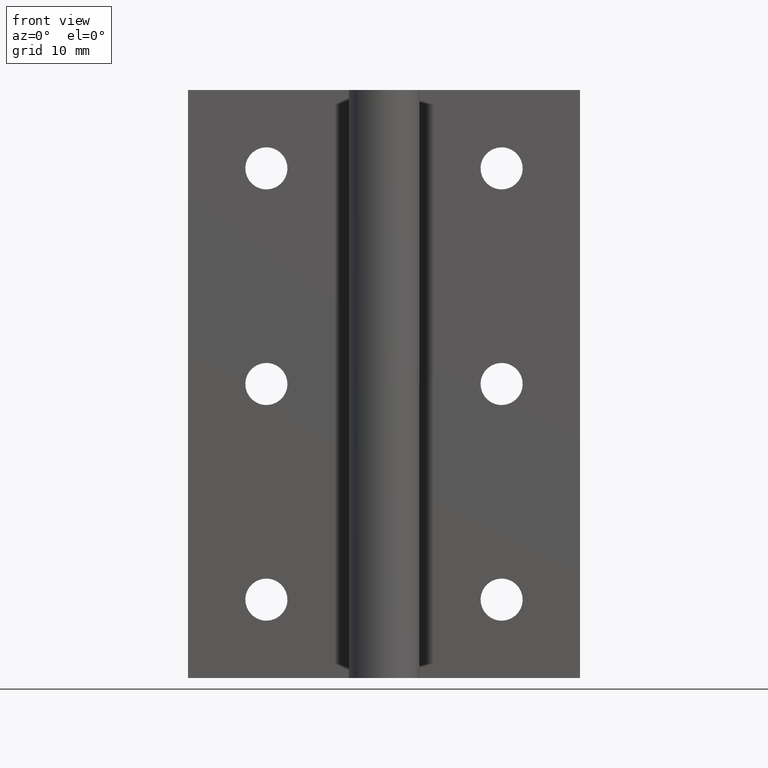
[diagram: clean part render]
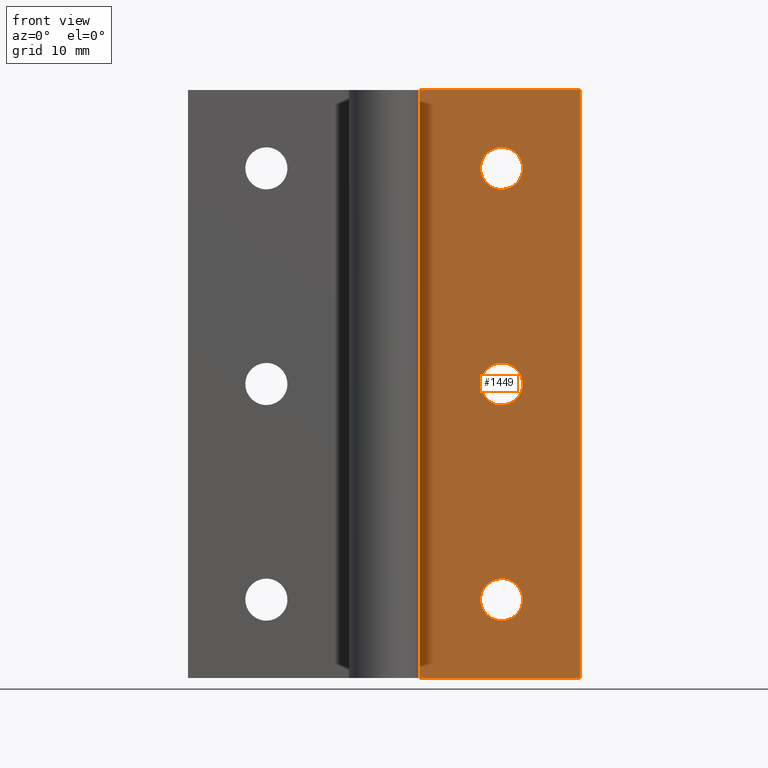
[diagram: same view with one face highlighted and labeled with its STEP entity id]
A machine part, front view. The second image highlights one B-rep face of the part: STEP entity #1449.
In plain terms, the highlighted face is a freeform B-spline surface patch.
Its self-contained STEP definition (entity closure, byte-faithful):
#455=CARTESIAN_POINT('',(12.0,8.999998000000000,54.150008000000099));
#456=VERTEX_POINT('',#455);
#457=CARTESIAN_POINT('',(9.856627732478707,8.999998000000000,52.168695055877620));
#458=VERTEX_POINT('',#457);
#459=CARTESIAN_POINT('',(12.0,8.999998000000000,54.150008000000099));
#460=CARTESIAN_POINT('',(10.012560443051399,8.999998000000000,54.150008000000099));
#461=CARTESIAN_POINT('',(9.856627732478707,8.999998000000000,52.168695055877627));
#469=(BOUNDED_CURVE()B_SPLINE_CURVE(2,(#459,#460,#461),.UNSPECIFIED.,.F.,.U.)B_SPLINE_CURVE_WITH_KNOTS((3,3),(0.0,0.236331300622746),.UNSPECIFIED.)CURVE()GEOMETRIC_REPRESENTATION_ITEM()RATIONAL_B_SPLINE_CURVE((1.0,0.723120658616937,0.969723356150902))REPRESENTATION_ITEM(''));
#470=EDGE_CURVE('',#456,#458,#469,.T.);
#511=CARTESIAN_POINT('',(14.143372267521290,8.999998000000002,51.831320944122581));
#512=VERTEX_POINT('',#511);
#518=CARTESIAN_POINT('',(14.143372267521297,8.999998000000002,51.831320944122581));
#519=CARTESIAN_POINT('',(14.150000000000004,8.999998000000000,51.915534269870669));
#520=CARTESIAN_POINT('',(14.150000000000000,8.999998000000000,52.000008000000101));
#521=CARTESIAN_POINT('',(14.150000000000006,8.999998000000002,54.150008000000099));
#522=CARTESIAN_POINT('',(12.0,8.999998000000000,54.150008000000099));
#530=(BOUNDED_CURVE()B_SPLINE_CURVE(2,(#518,#519,#520,#521,#522),.UNSPECIFIED.,.F.,.U.)B_SPLINE_CURVE_WITH_KNOTS((3,2,3),(0.736331300622746,0.750000000000000,1.0),.UNSPECIFIED.)CURVE()GEOMETRIC_REPRESENTATION_ITEM()RATIONAL_B_SPLINE_CURVE((0.969723356150902,0.983986122569610,1.0,0.707106781186547,1.0))REPRESENTATION_ITEM(''));
#531=EDGE_CURVE('',#512,#456,#530,.T.);
#554=CARTESIAN_POINT('',(12.0,8.999998000000000,49.850008000000102));
#555=VERTEX_POINT('',#554);
#556=CARTESIAN_POINT('',(9.856627732478707,8.999998000000000,52.168695055877627));
#557=CARTESIAN_POINT('',(9.850000000000001,8.999998000000002,52.084481730129525));
#558=CARTESIAN_POINT('',(9.850000000000001,8.999998000000000,52.000008000000101));
#559=CARTESIAN_POINT('',(9.850000000000001,8.999998000000002,49.850008000000102));
#560=CARTESIAN_POINT('',(12.0,8.999998000000000,49.850008000000102));
#568=(BOUNDED_CURVE()B_SPLINE_CURVE(2,(#556,#557,#558,#559,#560),.UNSPECIFIED.,.F.,.U.)B_SPLINE_CURVE_WITH_KNOTS((3,2,3),(0.236331300622746,0.250000000000000,0.500000000000000),.UNSPECIFIED.)CURVE()GEOMETRIC_REPRESENTATION_ITEM()RATIONAL_B_SPLINE_CURVE((0.969723356150902,0.983986122569610,1.0,0.707106781186547,1.0))REPRESENTATION_ITEM(''));
#569=EDGE_CURVE('',#458,#555,#568,.T.);
#571=CARTESIAN_POINT('',(12.0,8.999998000000000,49.850008000000102));
#572=CARTESIAN_POINT('',(13.987439556948599,8.999998000000000,49.850008000000088));
#573=CARTESIAN_POINT('',(14.143372267521297,8.999998000000002,51.831320944122581));
#581=(BOUNDED_CURVE()B_SPLINE_CURVE(2,(#571,#572,#573),.UNSPECIFIED.,.F.,.U.)B_SPLINE_CURVE_WITH_KNOTS((3,3),(0.500000000000000,0.736331300622745),.UNSPECIFIED.)CURVE()GEOMETRIC_REPRESENTATION_ITEM()RATIONAL_B_SPLINE_CURVE((1.0,0.723120658616938,0.969723356150901))REPRESENTATION_ITEM(''));
#582=EDGE_CURVE('',#555,#512,#581,.T.);
#637=CARTESIAN_POINT('',(12.0,8.999998000000000,32.150008000000113));
#638=VERTEX_POINT('',#637);
#639=CARTESIAN_POINT('',(9.856627732478707,8.999998000000000,30.168695055877610));
#640=VERTEX_POINT('',#639);
#641=CARTESIAN_POINT('',(12.0,8.999998000000000,32.150008000000113));
#642=CARTESIAN_POINT('',(10.012560443051395,8.999998000000000,32.150008000000106));
#643=CARTESIAN_POINT('',(9.856627732478707,8.999998000000000,30.168695055877617));
#651=(BOUNDED_CURVE()B_SPLINE_CURVE(2,(#641,#642,#643),.UNSPECIFIED.,.F.,.U.)B_SPLINE_CURVE_WITH_KNOTS((3,3),(0.0,0.236331300622746),.UNSPECIFIED.)CURVE()GEOMETRIC_REPRESENTATION_ITEM()RATIONAL_B_SPLINE_CURVE((1.0,0.723120658616937,0.969723356150903))REPRESENTATION_ITEM(''));
#652=EDGE_CURVE('',#638,#640,#651,.T.);
#693=CARTESIAN_POINT('',(14.143372267521290,8.999998000000000,29.831320944122591));
#694=VERTEX_POINT('',#693);
#700=CARTESIAN_POINT('',(14.143372267521292,8.999998000000000,29.831320944122588));
#701=CARTESIAN_POINT('',(14.149999999999997,8.999998000000000,29.915534269870676));
#702=CARTESIAN_POINT('',(14.150000000000000,8.999998000000000,30.000008000000101));
#703=CARTESIAN_POINT('',(14.150000000000006,8.999998000000002,32.150008000000113));
#704=CARTESIAN_POINT('',(12.0,8.999998000000000,32.150008000000113));
#712=(BOUNDED_CURVE()B_SPLINE_CURVE(2,(#700,#701,#702,#703,#704),.UNSPECIFIED.,.F.,.U.)B_SPLINE_CURVE_WITH_KNOTS((3,2,3),(0.736331300622746,0.750000000000000,1.0),.UNSPECIFIED.)CURVE()GEOMETRIC_REPRESENTATION_ITEM()RATIONAL_B_SPLINE_CURVE((0.969723356150902,0.983986122569610,1.0,0.707106781186547,1.0))REPRESENTATION_ITEM(''));
#713=EDGE_CURVE('',#694,#638,#712,.T.);
#736=CARTESIAN_POINT('',(12.0,8.999998000000000,27.850008000000098));
#737=VERTEX_POINT('',#736);
#738=CARTESIAN_POINT('',(9.856627732478707,8.999998000000000,30.168695055877613));
#739=CARTESIAN_POINT('',(9.850000000000001,8.999997999999998,30.084481730129532));
#740=CARTESIAN_POINT('',(9.850000000000001,8.999998000000000,30.000008000000101));
#741=CARTESIAN_POINT('',(9.850000000000001,8.999998000000002,27.850008000000106));
#742=CARTESIAN_POINT('',(12.0,8.999998000000000,27.850008000000098));
#750=(BOUNDED_CURVE()B_SPLINE_CURVE(2,(#738,#739,#740,#741,#742),.UNSPECIFIED.,.F.,.U.)B_SPLINE_CURVE_WITH_KNOTS((3,2,3),(0.236331300622746,0.250000000000000,0.500000000000000),.UNSPECIFIED.)CURVE()GEOMETRIC_REPRESENTATION_ITEM()RATIONAL_B_SPLINE_CURVE((0.969723356150903,0.983986122569611,1.0,0.707106781186547,1.0))REPRESENTATION_ITEM(''));
#751=EDGE_CURVE('',#640,#737,#750,.T.);
#753=CARTESIAN_POINT('',(12.0,8.999998000000000,27.850008000000098));
#754=CARTESIAN_POINT('',(13.987439556948599,8.999998000000000,27.850008000000102));
#755=CARTESIAN_POINT('',(14.143372267521297,8.999997999999998,29.831320944122591));
#763=(BOUNDED_CURVE()B_SPLINE_CURVE(2,(#753,#754,#755),.UNSPECIFIED.,.F.,.U.)B_SPLINE_CURVE_WITH_KNOTS((3,3),(0.500000000000000,0.736331300622745),.UNSPECIFIED.)CURVE()GEOMETRIC_REPRESENTATION_ITEM()RATIONAL_B_SPLINE_CURVE((1.0,0.723120658616938,0.969723356150901))REPRESENTATION_ITEM(''));
#764=EDGE_CURVE('',#737,#694,#763,.T.);
#819=CARTESIAN_POINT('',(12.0,8.999998000000000,10.150000000000000));
#820=VERTEX_POINT('',#819);
#821=CARTESIAN_POINT('',(9.856627732478707,8.999998000000000,8.168687055877516));
#822=VERTEX_POINT('',#821);
#823=CARTESIAN_POINT('',(12.0,8.999998000000000,10.150000000000000));
#824=CARTESIAN_POINT('',(10.012560443051397,8.999998000000000,10.149999999999997));
#825=CARTESIAN_POINT('',(9.856627732478707,8.999998000000000,8.168687055877516));
#833=(BOUNDED_CURVE()B_SPLINE_CURVE(2,(#823,#824,#825),.UNSPECIFIED.,.F.,.U.)B_SPLINE_CURVE_WITH_KNOTS((3,3),(0.0,0.236331300622746),.UNSPECIFIED.)CURVE()GEOMETRIC_REPRESENTATION_ITEM()RATIONAL_B_SPLINE_CURVE((1.0,0.723120658616937,0.969723356150902))REPRESENTATION_ITEM(''));
#834=EDGE_CURVE('',#820,#822,#833,.T.);
#875=CARTESIAN_POINT('',(14.143372267521290,8.999998000000000,7.831312944122485));
#876=VERTEX_POINT('',#875);
#882=CARTESIAN_POINT('',(14.143372267521290,8.999998000000000,7.831312944122485));
#883=CARTESIAN_POINT('',(14.149999999999995,8.999998000000000,7.915526269870571));
#884=CARTESIAN_POINT('',(14.150000000000000,8.999998000000000,8.0));
#885=CARTESIAN_POINT('',(14.150000000000006,8.999998000000002,10.149999999999999));
#886=CARTESIAN_POINT('',(12.0,8.999998000000000,10.150000000000000));
#894=(BOUNDED_CURVE()B_SPLINE_CURVE(2,(#882,#883,#884,#885,#886),.UNSPECIFIED.,.F.,.U.)B_SPLINE_CURVE_WITH_KNOTS((3,2,3),(0.736331300622746,0.750000000000000,1.0),.UNSPECIFIED.)CURVE()GEOMETRIC_REPRESENTATION_ITEM()RATIONAL_B_SPLINE_CURVE((0.969723356150902,0.983986122569610,1.0,0.707106781186547,1.0))REPRESENTATION_ITEM(''));
#895=EDGE_CURVE('',#876,#820,#894,.T.);
#918=CARTESIAN_POINT('',(12.0,8.999998000000000,5.850000000000001));
#919=VERTEX_POINT('',#918);
#920=CARTESIAN_POINT('',(9.856627732478707,8.999998000000000,8.168687055877516));
#921=CARTESIAN_POINT('',(9.850000000000001,8.999998000000000,8.084473730129430));
#922=CARTESIAN_POINT('',(9.850000000000001,8.999998000000000,8.0));
#923=CARTESIAN_POINT('',(9.850000000000001,8.999998000000002,5.850000000000001));
#924=CARTESIAN_POINT('',(12.0,8.999998000000000,5.850000000000001));
#932=(BOUNDED_CURVE()B_SPLINE_CURVE(2,(#920,#921,#922,#923,#924),.UNSPECIFIED.,.F.,.U.)B_SPLINE_CURVE_WITH_KNOTS((3,2,3),(0.236331300622746,0.250000000000000,0.500000000000000),.UNSPECIFIED.)CURVE()GEOMETRIC_REPRESENTATION_ITEM()RATIONAL_B_SPLINE_CURVE((0.969723356150902,0.983986122569610,1.0,0.707106781186547,1.0))REPRESENTATION_ITEM(''));
#933=EDGE_CURVE('',#822,#919,#932,.T.);
#935=CARTESIAN_POINT('',(12.0,8.999998000000000,5.850000000000001));
#936=CARTESIAN_POINT('',(13.987439556948599,8.999998000000000,5.850000000000000));
#937=CARTESIAN_POINT('',(14.143372267521297,8.999997999999998,7.831312944122485));
#945=(BOUNDED_CURVE()B_SPLINE_CURVE(2,(#935,#936,#937),.UNSPECIFIED.,.F.,.U.)B_SPLINE_CURVE_WITH_KNOTS((3,3),(0.500000000000000,0.736331300622745),.UNSPECIFIED.)CURVE()GEOMETRIC_REPRESENTATION_ITEM()RATIONAL_B_SPLINE_CURVE((1.0,0.723120658616938,0.969723356150901))REPRESENTATION_ITEM(''));
#946=EDGE_CURVE('',#919,#876,#945,.T.);
#1219=CARTESIAN_POINT('',(3.599999999999895,8.999998999999999,60.000008000000101));
#1220=VERTEX_POINT('',#1219);
#1226=CARTESIAN_POINT('',(20.000008000000101,8.999998999999999,60.000008000000101));
#1227=VERTEX_POINT('',#1226);
#1228=CARTESIAN_POINT('',(3.599999999999895,8.999998999999999,60.000008000000101));
#1229=CARTESIAN_POINT('',(20.000008000000101,8.999998999999999,60.000008000000101));
#1230=QUASI_UNIFORM_CURVE('',1,(#1228,#1229),.UNSPECIFIED.,.F.,.U.);
#1231=EDGE_CURVE('',#1220,#1227,#1230,.T.);
#1259=CARTESIAN_POINT('',(20.000008000000101,8.999998999999999,0.0));
#1260=VERTEX_POINT('',#1259);
#1266=CARTESIAN_POINT('',(3.599999999999895,8.999998999999999,0.0));
#1267=VERTEX_POINT('',#1266);
#1268=CARTESIAN_POINT('',(3.599999999999895,8.999998999999999,0.0));
#1269=CARTESIAN_POINT('',(20.000008000000101,8.999998999999999,0.0));
#1270=QUASI_UNIFORM_CURVE('',1,(#1268,#1269),.UNSPECIFIED.,.F.,.U.);
#1271=EDGE_CURVE('',#1267,#1260,#1270,.T.);
#1289=CARTESIAN_POINT('',(3.599999999999895,8.999998999999999,0.0));
#1290=CARTESIAN_POINT('',(3.599999999999895,8.999998999999999,60.000008000000101));
#1291=QUASI_UNIFORM_CURVE('',1,(#1289,#1290),.UNSPECIFIED.,.F.,.U.);
#1292=EDGE_CURVE('',#1267,#1220,#1291,.T.);
#1406=CARTESIAN_POINT('',(20.000008000000101,8.999998999999999,0.0));
#1407=CARTESIAN_POINT('',(20.000008000000101,8.999998999999999,60.000008000000101));
#1408=QUASI_UNIFORM_CURVE('',1,(#1406,#1407),.UNSPECIFIED.,.F.,.U.);
#1409=EDGE_CURVE('',#1260,#1227,#1408,.T.);
#1420=CARTESIAN_POINT('',(2.780819536827088,8.999998999999999,62.997008283308453));
#1421=CARTESIAN_POINT('',(2.780819536827088,8.999998999999999,-2.997001892633966));
#1422=CARTESIAN_POINT('',(20.819187583407921,8.999998999999999,62.997008283308453));
#1423=CARTESIAN_POINT('',(20.819187583407921,8.999998999999999,-2.997001892633966));
#1424=B_SPLINE_SURFACE_WITH_KNOTS('',1,1,((#1420,#1422),(#1421,#1423)),.UNSPECIFIED.,.F.,.F.,.U.,(2,2),(2,2),(0.0,65.994010175942421),(0.0,18.038368046580828),.UNSPECIFIED.);
#1425=ORIENTED_EDGE('',*,*,#1231,.F.);
#1426=ORIENTED_EDGE('',*,*,#1292,.F.);
#1427=ORIENTED_EDGE('',*,*,#1271,.T.);
#1428=ORIENTED_EDGE('',*,*,#1409,.T.);
#1429=EDGE_LOOP('',(#1425,#1426,#1427,#1428));
#1430=FACE_OUTER_BOUND('',#1429,.T.);
#1431=ORIENTED_EDGE('',*,*,#946,.F.);
#1432=ORIENTED_EDGE('',*,*,#933,.F.);
#1433=ORIENTED_EDGE('',*,*,#834,.F.);
#1434=ORIENTED_EDGE('',*,*,#895,.F.);
#1435=EDGE_LOOP('',(#1431,#1432,#1433,#1434));
#1436=FACE_BOUND('',#1435,.T.);
#1437=ORIENTED_EDGE('',*,*,#764,.F.);
#1438=ORIENTED_EDGE('',*,*,#751,.F.);
#1439=ORIENTED_EDGE('',*,*,#652,.F.);
#1440=ORIENTED_EDGE('',*,*,#713,.F.);
#1441=EDGE_LOOP('',(#1437,#1438,#1439,#1440));
#1442=FACE_BOUND('',#1441,.T.);
#1443=ORIENTED_EDGE('',*,*,#582,.F.);
#1444=ORIENTED_EDGE('',*,*,#569,.F.);
#1445=ORIENTED_EDGE('',*,*,#470,.F.);
#1446=ORIENTED_EDGE('',*,*,#531,.F.);
#1447=EDGE_LOOP('',(#1443,#1444,#1445,#1446));
#1448=FACE_BOUND('',#1447,.T.);
#1449=ADVANCED_FACE('',(#1430,#1436,#1442,#1448),#1424,.T.);